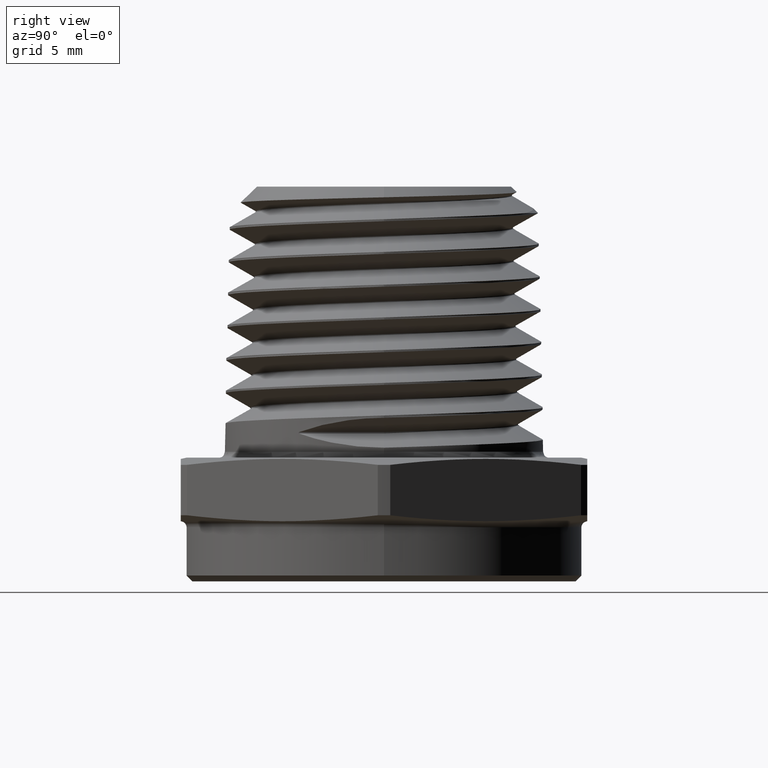
[diagram: clean part render]
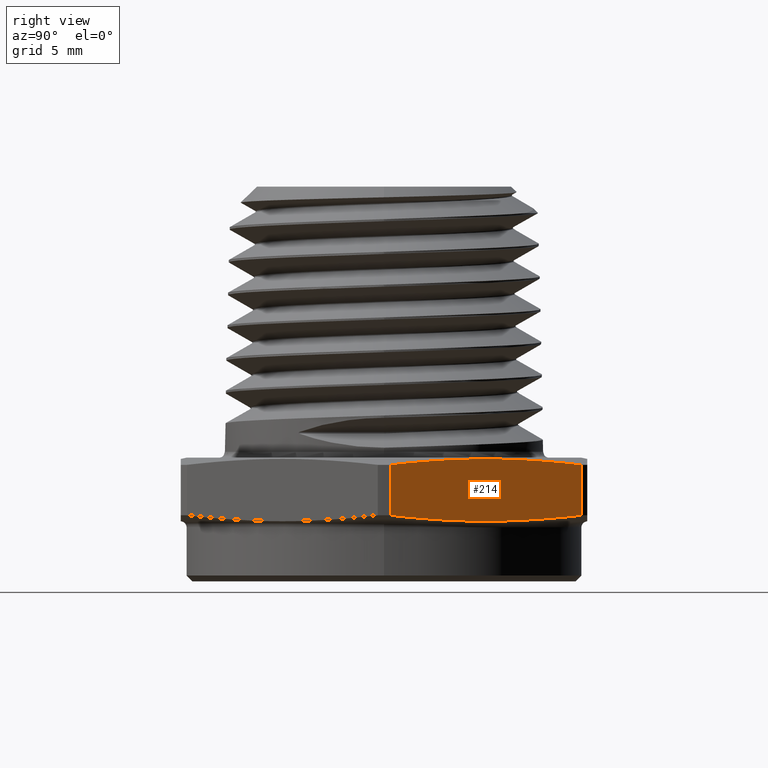
[diagram: same view with one face highlighted and labeled with its STEP entity id]
A machine part, right view. The second image highlights one B-rep face of the part: STEP entity #214.
In plain terms, the highlighted planar face has unit normal (-0.866, -0.5, 0).
Its self-contained STEP definition (entity closure, byte-faithful):
#103 = EDGE_CURVE ( 'NONE', #474, #469, #717, .T. ) ;
#108 = EDGE_CURVE ( 'NONE', #478, #479, #725, .T. ) ;
#214 = ADVANCED_FACE ( 'NONE', ( #808 ), #1787, .F. ) ;
#235 = EDGE_CURVE ( 'NONE', #469, #478, #1515, .T. ) ;
#246 = EDGE_CURVE ( 'NONE', #479, #474, #1516, .T. ) ;
#469 = VERTEX_POINT ( 'NONE', #4916 ) ;
#474 = VERTEX_POINT ( 'NONE', #4921 ) ;
#478 = VERTEX_POINT ( 'NONE', #4924 ) ;
#479 = VERTEX_POINT ( 'NONE', #4925 ) ;
#495 = EDGE_LOOP ( 'NONE', ( #5233, #5232, #5231, #5164 ) ) ;
#717 = LINE ( 'NONE', #1452, #720 ) ;
#720 = VECTOR ( 'NONE', #1454, 39.37007874015748100 ) ;
#725 = LINE ( 'NONE', #1466, #728 ) ;
#728 = VECTOR ( 'NONE', #1467, 39.37007874015748100 ) ;
#808 = FACE_OUTER_BOUND ( 'NONE', #495, .T. ) ;
#1452 = CARTESIAN_POINT ( 'NONE',  ( 0.3922273327418436800, 0.01064233157390331900, -1.144414902203097300E-017 ) ) ;
#1454 = DIRECTION ( 'NONE',  ( -1.224646799147351200E-016, -0.0000000000000000000, -1.000000000000000000 ) ) ;
#1466 = CARTESIAN_POINT ( 'NONE',  ( 0.2053301958694188900, 0.3343576684260972100, 1.144414902203097300E-017 ) ) ;
#1467 = DIRECTION ( 'NONE',  ( 1.224646799147351200E-016, 0.0000000000000000000, 1.000000000000000000 ) ) ;
#1515 = B_SPLINE_CURVE_WITH_KNOTS ( 'NONE', 3,
 ( #2336, #2335, #2332, #2337, #2338 ),
 .UNSPECIFIED., .F., .F.,
 ( 4, 1, 4 ),
 ( 1.975061655775597400E-006, 0.004749162338215359700, 0.009496349614774945600 ),
 .UNSPECIFIED. ) ;
#1516 = B_SPLINE_CURVE_WITH_KNOTS ( 'NONE', 3,
 ( #2367, #2362, #2363, #2368, #2369 ),
 .UNSPECIFIED., .F., .F.,
 ( 4, 1, 4 ),
 ( 1.975061656124076100E-006, 0.004749162338215707500, 0.009496349614775290900 ),
 .UNSPECIFIED. ) ;
#1716 = AXIS2_PLACEMENT_3D ( 'NONE', #1788, #1795, #1796 ) ;
#1787 = PLANE ( 'NONE',  #1716 ) ;
#1788 = CARTESIAN_POINT ( 'NONE',  ( 0.3983716857408418100, 1.237868622129119300E-016, 0.1100000000000000000 ) ) ;
#1795 = DIRECTION ( 'NONE',  ( -0.8660254037844383700, -0.5000000000000006700, 0.0000000000000000000 ) ) ;
#1796 = DIRECTION ( 'NONE',  ( 0.5000000000000005600, -0.8660254037844382600, 0.0000000000000000000 ) ) ;
#2332 = CARTESIAN_POINT ( 'NONE',  ( 0.2987787643056311600, 0.1725000000000003500, -0.001636044177380862100 ) ) ;
#2335 = CARTESIAN_POINT ( 'NONE',  ( 0.3610778099297727900, 0.06459488771593559200, 0.005887175410780934100 ) ) ;
#2336 = CARTESIAN_POINT ( 'NONE',  ( 0.3922273327418436800, 0.01064233157390331900, 0.01219472825828593100 ) ) ;
#2337 = CARTESIAN_POINT ( 'NONE',  ( 0.2364797186814895400, 0.2804051122840648900, 0.005887175410780952400 ) ) ;
#2338 = CARTESIAN_POINT ( 'NONE',  ( 0.2053301958694188600, 0.3343576684260971500, 0.01219472825828585600 ) ) ;
#2362 = CARTESIAN_POINT ( 'NONE',  ( 0.2364797186814895400, 0.2804051122840647800, 0.1041128245892189000 ) ) ;
#2363 = CARTESIAN_POINT ( 'NONE',  ( 0.2987787643056312200, 0.1725000000000001000, 0.1116360441773807200 ) ) ;
#2367 = CARTESIAN_POINT ( 'NONE',  ( 0.2053301958694188600, 0.3343576684260971500, 0.09780527174171399500 ) ) ;
#2368 = CARTESIAN_POINT ( 'NONE',  ( 0.3610778099297728400, 0.06459488771593560600, 0.1041128245892188700 ) ) ;
#2369 = CARTESIAN_POINT ( 'NONE',  ( 0.3922273327418436300, 0.01064233157390331500, 0.09780527174171395300 ) ) ;
#4916 = CARTESIAN_POINT ( 'NONE',  ( 0.3922273327418436800, 0.01064233157390331900, 0.01219472825828593100 ) ) ;
#4921 = CARTESIAN_POINT ( 'NONE',  ( 0.3922273327418436300, 0.01064233157390331500, 0.09780527174171395300 ) ) ;
#4924 = CARTESIAN_POINT ( 'NONE',  ( 0.2053301958694188600, 0.3343576684260971500, 0.01219472825828585600 ) ) ;
#4925 = CARTESIAN_POINT ( 'NONE',  ( 0.2053301958694188600, 0.3343576684260971500, 0.09780527174171399500 ) ) ;
#5164 = ORIENTED_EDGE ( 'NONE', *, *, #103, .T. ) ;
#5231 = ORIENTED_EDGE ( 'NONE', *, *, #246, .T. ) ;
#5232 = ORIENTED_EDGE ( 'NONE', *, *, #108, .T. ) ;
#5233 = ORIENTED_EDGE ( 'NONE', *, *, #235, .T. ) ;